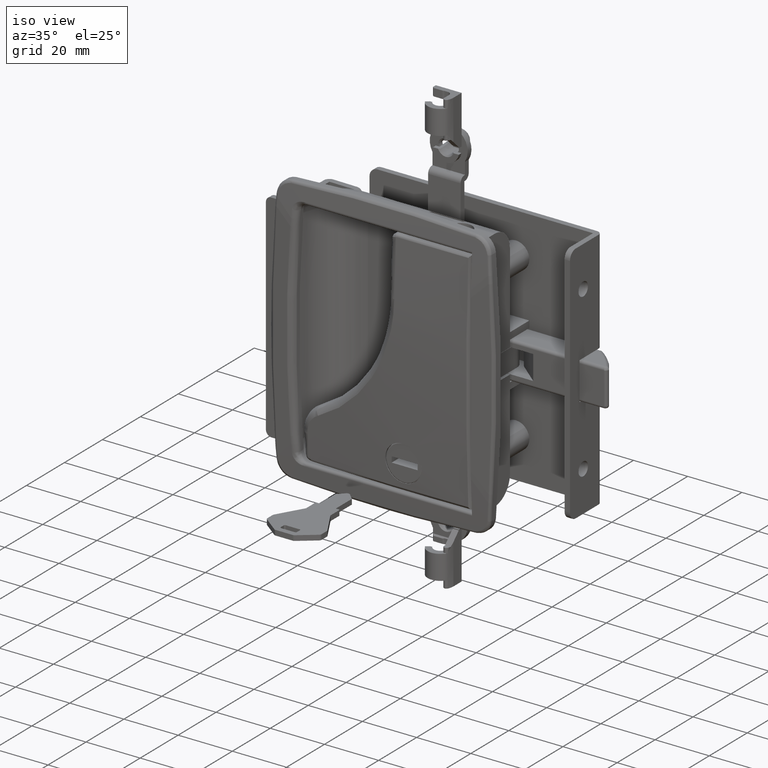
[diagram: clean part render]
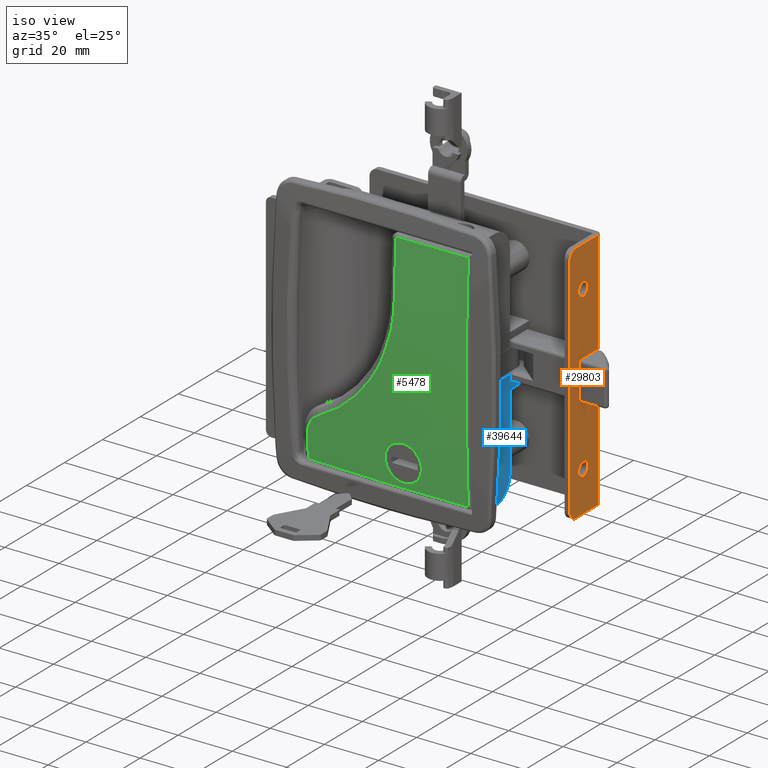
[diagram: same view with three faces highlighted in distinct colors, each labeled with its STEP entity id]
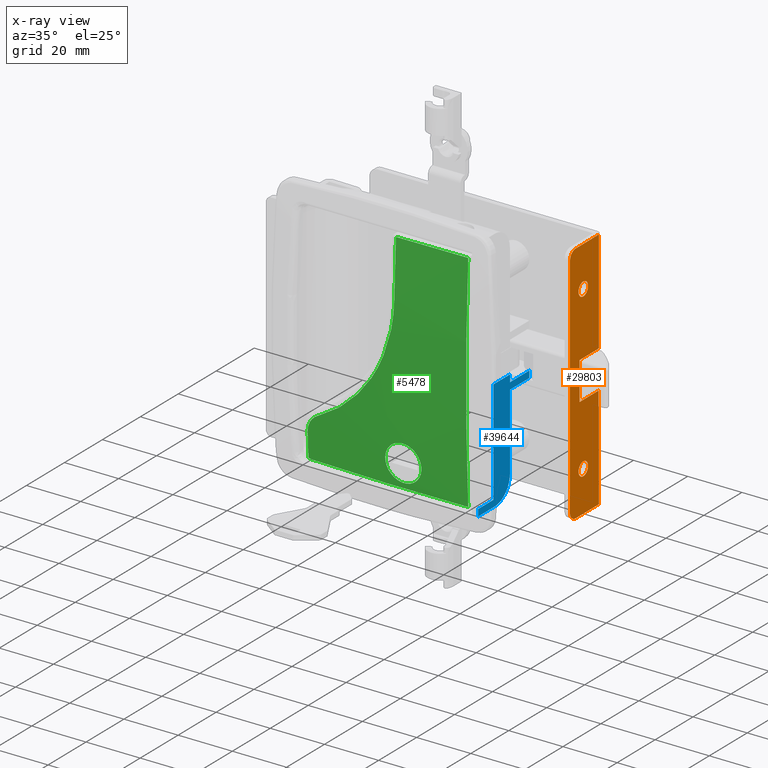
[diagram: x-ray of the same camera — body ghosted, the three highlighted faces saturated]
A machine part, iso view with three faces highlighted in distinct colors.
The next image is the same camera in x-ray (body ghosted, the three faces saturated) — at least one of them is partly hidden behind the body in this view.
Their STEP definitions:

[orange] entity #29803 — the highlighted face is a freeform B-spline surface patch.
#25443=CARTESIAN_POINT('',(58.500000000000007,-11.791626752612901,28.256420619080270));
#25444=VERTEX_POINT('',#25443);
#25450=CARTESIAN_POINT('',(58.500000000000000,-10.0,27.500000000000000));
#25451=VERTEX_POINT('',#25450);
#25452=CARTESIAN_POINT('',(58.500000000000000,-10.0,27.500000000000000));
#25453=CARTESIAN_POINT('',(58.499999999999972,-10.353799747925050,27.499489054551159));
#25454=CARTESIAN_POINT('',(58.500000000000171,-11.019124310109810,27.643920813379530));
#25455=CARTESIAN_POINT('',(58.499999999999829,-11.574133255492701,28.032504268872131));
#25456=CARTESIAN_POINT('',(58.500000000000007,-11.791626752612901,28.256420619080270));
#25457=B_SPLINE_CURVE_WITH_KNOTS('',3,(#25452,#25453,#25454,#25455,#25456),.UNSPECIFIED.,.F.,.U.,(4,1,4),(0.000000091734668,1.061160868878573,1.997522600966416),.UNSPECIFIED.);
#25458=EDGE_CURVE('',#25451,#25444,#25457,.T.);
#25460=CARTESIAN_POINT('',(58.500000000000000,-7.500000000002619,29.999996381261450));
#25461=VERTEX_POINT('',#25460);
#25462=CARTESIAN_POINT('',(58.500000000000000,-7.500000000002619,29.999996381261450));
#25463=CARTESIAN_POINT('',(58.500000000000043,-7.499575384216463,29.652210141308540));
#25464=CARTESIAN_POINT('',(58.500000000000007,-7.612767266153377,29.120799492668279));
#25465=CARTESIAN_POINT('',(58.500000000000000,-7.954896265043962,28.534160824037571));
#25466=CARTESIAN_POINT('',(58.499999999999979,-8.294843221877411,28.149727095857330));
#25467=CARTESIAN_POINT('',(58.499999999999893,-8.786037329991853,27.775676674914109));
#25468=CARTESIAN_POINT('',(58.500000000000362,-9.386353188072505,27.544182437713030));
#25469=CARTESIAN_POINT('',(58.499999999999673,-9.836385908642622,27.500004912769722));
#25470=CARTESIAN_POINT('',(58.500000000000000,-10.0,27.500000000000000));
#25471=B_SPLINE_CURVE_WITH_KNOTS('',3,(#25462,#25463,#25464,#25465,#25466,#25467,#25468,#25469,#25470),.UNSPECIFIED.,.F.,.U.,(4,1,1,1,1,1,4),(0.000000309750733,1.043135406267361,1.595420567432827,2.024861178850746,2.577125802680900,3.436208782156383,3.927087321231317),.UNSPECIFIED.);
#25472=EDGE_CURVE('',#25461,#25451,#25471,.T.);
#25474=CARTESIAN_POINT('',(58.500000000000000,-10.0,32.500000000000000));
#25475=VERTEX_POINT('',#25474);
#25476=CARTESIAN_POINT('',(58.500000000000000,-10.0,32.500000000000000));
#25477=CARTESIAN_POINT('',(58.500000000000057,-9.652226691165442,32.500453213499853));
#25478=CARTESIAN_POINT('',(58.499999999999957,-9.059462576169743,32.374150436875887));
#25479=CARTESIAN_POINT('',(58.500000000000092,-8.290747230759148,31.887479883655580));
#25480=CARTESIAN_POINT('',(58.499999999999730,-7.835858492776588,31.319112983695089));
#25481=CARTESIAN_POINT('',(58.500000000000263,-7.560779371302690,30.654420962905469));
#25482=CARTESIAN_POINT('',(58.499999999999787,-7.499883173891552,30.245446999349671));
#25483=CARTESIAN_POINT('',(58.500000000000000,-7.500000000002619,29.999996381261450));
#25484=B_SPLINE_CURVE_WITH_KNOTS('',3,(#25476,#25477,#25478,#25479,#25480,#25481,#25482,#25483),.UNSPECIFIED.,.F.,.U.,(4,1,1,1,1,4),(0.000000304801900,1.043136485764415,1.779506677488577,2.699873066508526,3.190764189746732,3.927091400494825),.UNSPECIFIED.);
#25485=EDGE_CURVE('',#25475,#25461,#25484,.T.);
#25487=CARTESIAN_POINT('',(58.500000000000007,-11.843194006482120,31.688976127918071));
#25488=VERTEX_POINT('',#25487);
#25489=CARTESIAN_POINT('',(58.500000000000007,-11.843194006482120,31.688976127918071));
#25490=CARTESIAN_POINT('',(58.499999999999993,-11.682808576849821,31.864130389257689));
#25491=CARTESIAN_POINT('',(58.500000000000107,-11.362236226956741,32.126668254783247));
#25492=CARTESIAN_POINT('',(58.499999999999901,-10.733927696937471,32.422791555695177));
#25493=CARTESIAN_POINT('',(58.500000000000249,-10.280699857958380,32.500199862698253));
#25494=CARTESIAN_POINT('',(58.500000000000000,-10.0,32.500000000000000));
#25495=B_SPLINE_CURVE_WITH_KNOTS('',3,(#25489,#25490,#25491,#25492,#25493,#25494),.UNSPECIFIED.,.F.,.U.,(4,1,1,4),(0.000000081706419,0.712471856130516,1.230607914070312,2.072636806791586),.UNSPECIFIED.);
#25496=EDGE_CURVE('',#25488,#25475,#25495,.T.);
#25578=CARTESIAN_POINT('',(58.500000000000007,-12.499999999997380,30.000003618738521));
#25579=VERTEX_POINT('',#25578);
#25580=CARTESIAN_POINT('',(58.500000000000007,-12.499999999997380,30.000003618738521));
#25581=CARTESIAN_POINT('',(58.499999999999957,-12.500096949998129,30.251124670303138));
#25582=CARTESIAN_POINT('',(58.500000000000043,-12.406121717686730,30.869247578963911));
#25583=CARTESIAN_POINT('',(58.500000000000021,-12.091660925802691,31.418688408468579));
#25584=CARTESIAN_POINT('',(58.500000000000007,-11.843194006482120,31.688976127918071));
#25585=B_SPLINE_CURVE_WITH_KNOTS('',3,(#25580,#25581,#25582,#25583,#25584),.UNSPECIFIED.,.F.,.U.,(4,1,4),(0.000000063451577,0.753383243055221,1.854450553923379),.UNSPECIFIED.);
#25586=EDGE_CURVE('',#25579,#25488,#25585,.T.);
#25588=CARTESIAN_POINT('',(58.500000000000007,-11.791626752612901,28.256420619080270));
#25589=CARTESIAN_POINT('',(58.499999999999808,-11.959909328116829,28.429215371720449));
#25590=CARTESIAN_POINT('',(58.500000000000227,-12.233921232104841,28.807543885523849));
#25591=CARTESIAN_POINT('',(58.499999999999979,-12.456229201513720,29.417123661638179));
#25592=CARTESIAN_POINT('',(58.500000000000213,-12.500017610280789,29.819111184092769));
#25593=CARTESIAN_POINT('',(58.500000000000007,-12.499999999997380,30.000003618738521));
#25594=B_SPLINE_CURVE_WITH_KNOTS('',3,(#25588,#25589,#25590,#25591,#25592,#25593),.UNSPECIFIED.,.F.,.U.,(4,1,1,4),(0.000000077307466,0.723589141517209,1.386875963193835,1.929569756129598),.UNSPECIFIED.);
#25595=EDGE_CURVE('',#25444,#25579,#25594,.T.);
#25640=CARTESIAN_POINT('',(58.499999999999993,-11.791626752612901,-31.743279380919720));
#25641=VERTEX_POINT('',#25640);
#25647=CARTESIAN_POINT('',(58.500000000000000,-10.0,-32.499699999999997));
#25648=VERTEX_POINT('',#25647);
#25649=CARTESIAN_POINT('',(58.500000000000000,-10.0,-32.499699999999997));
#25650=CARTESIAN_POINT('',(58.500000000000021,-10.312156115236631,-32.499999183600437));
#25651=CARTESIAN_POINT('',(58.500000000000050,-10.977717358826670,-32.373261764730252));
#25652=CARTESIAN_POINT('',(58.499999999999893,-11.545241495955350,-31.997186885118062));
#25653=CARTESIAN_POINT('',(58.499999999999993,-11.791626752612901,-31.743279380919720));
#25654=B_SPLINE_CURVE_WITH_KNOTS('',3,(#25649,#25650,#25651,#25652,#25653),.UNSPECIFIED.,.F.,.U.,(4,1,4),(0.000000091735229,0.936361823883568,1.997522600966404),.UNSPECIFIED.);
#25655=EDGE_CURVE('',#25648,#25641,#25654,.T.);
#25657=CARTESIAN_POINT('',(58.500000000000000,-7.500000000002619,-29.999703618738540));
#25658=VERTEX_POINT('',#25657);
#25659=CARTESIAN_POINT('',(58.500000000000000,-7.500000000002619,-29.999703618738540));
#25660=CARTESIAN_POINT('',(58.499999999999957,-7.499521543717540,-30.347509292751809));
#25661=CARTESIAN_POINT('',(58.500000000000092,-7.604111781611162,-30.837981722868719));
#25662=CARTESIAN_POINT('',(58.499999999999957,-7.930865775053447,-31.431445955129369));
#25663=CARTESIAN_POINT('',(58.500000000000099,-8.235569194607013,-31.793594384145401));
#25664=CARTESIAN_POINT('',(58.499999999999957,-8.652281339545628,-32.127126037488530));
#25665=CARTESIAN_POINT('',(58.500000000000163,-9.222892607958727,-32.414414198537237));
#25666=CARTESIAN_POINT('',(58.499999999999801,-9.713634983469943,-32.499895450498961));
#25667=CARTESIAN_POINT('',(58.500000000000000,-10.0,-32.499699999999997));
#25668=B_SPLINE_CURVE_WITH_KNOTS('',3,(#25659,#25660,#25661,#25662,#25663,#25664,#25665,#25666,#25667),.UNSPECIFIED.,.F.,.U.,(4,1,1,1,1,1,4),(0.000000309755065,1.043135406270683,1.472665276931566,2.024861178853010,2.454422349206760,3.068045654715613,3.927087321231261),.UNSPECIFIED.);
#25669=EDGE_CURVE('',#25658,#25648,#25668,.T.);
#25671=CARTESIAN_POINT('',(58.500000000000000,-10.0,-27.499700000000001));
#25672=VERTEX_POINT('',#25671);
#25673=CARTESIAN_POINT('',(58.500000000000000,-10.0,-27.499700000000001));
#25674=CARTESIAN_POINT('',(58.499999999999957,-9.754552369406728,-27.499599515813610));
#25675=CARTESIAN_POINT('',(58.500000000000099,-9.263735133037471,-27.572553032493630));
#25676=CARTESIAN_POINT('',(58.499999999999822,-8.609544075027740,-27.881890618590131));
#25677=CARTESIAN_POINT('',(58.500000000000412,-8.037385815074970,-28.387772710695401));
#25678=CARTESIAN_POINT('',(58.499999999999417,-7.610491252235001,-29.099864904968580));
#25679=CARTESIAN_POINT('',(58.500000000000377,-7.499769185098969,-29.692882721033151));
#25680=CARTESIAN_POINT('',(58.500000000000000,-7.500000000002619,-29.999703618738540));
#25681=B_SPLINE_CURVE_WITH_KNOTS('',3,(#25673,#25674,#25675,#25676,#25677,#25678,#25679,#25680),.UNSPECIFIED.,.F.,.U.,(4,1,1,1,1,4),(0.000000304801356,0.736327517250007,1.472666806307761,2.147585032619301,3.006682035478356,3.927091400494818),.UNSPECIFIED.);
#25682=EDGE_CURVE('',#25672,#25658,#25681,.T.);
#25684=CARTESIAN_POINT('',(58.499999999999993,-11.843194006482120,-28.310723872081940));
#25685=VERTEX_POINT('',#25684);
#25686=CARTESIAN_POINT('',(58.499999999999993,-11.843194006482120,-28.310723872081940));
#25687=CARTESIAN_POINT('',(58.500000000000007,-11.624616143066550,-28.071705872746708));
#25688=CARTESIAN_POINT('',(58.499999999999943,-11.057408060020521,-27.654784697483912));
#25689=CARTESIAN_POINT('',(58.500000000000043,-10.367102558836381,-27.499171984479439));
#25690=CARTESIAN_POINT('',(58.500000000000000,-10.0,-27.499700000000001));
#25691=B_SPLINE_CURVE_WITH_KNOTS('',3,(#25686,#25687,#25688,#25689,#25690),.UNSPECIFIED.,.F.,.U.,(4,1,4),(0.000000081706484,0.971566302684553,2.072636806791586),.UNSPECIFIED.);
#25692=EDGE_CURVE('',#25685,#25672,#25691,.T.);
#25773=CARTESIAN_POINT('',(58.499999999999993,-12.499999999997380,-29.999696381261479));
#25774=VERTEX_POINT('',#25773);
#25775=CARTESIAN_POINT('',(58.499999999999993,-12.499999999997380,-29.999696381261479));
#25776=CARTESIAN_POINT('',(58.499999999999957,-12.500094016407729,-29.748574917548741));
#25777=CARTESIAN_POINT('',(58.500000000000107,-12.406119502333940,-29.130457194658000));
#25778=CARTESIAN_POINT('',(58.500000000000000,-12.091672097273630,-28.581001544780470));
#25779=CARTESIAN_POINT('',(58.499999999999993,-11.843194006482120,-28.310723872081940));
#25780=B_SPLINE_CURVE_WITH_KNOTS('',3,(#25775,#25776,#25777,#25778,#25779),.UNSPECIFIED.,.F.,.U.,(4,1,4),(0.000000063451131,0.753383243055227,1.854450553923372),.UNSPECIFIED.);
#25781=EDGE_CURVE('',#25774,#25685,#25780,.T.);
#25783=CARTESIAN_POINT('',(58.499999999999993,-11.791626752612901,-31.743279380919720));
#25784=CARTESIAN_POINT('',(58.499999999999957,-11.973980961036689,-31.556113166533631));
#25785=CARTESIAN_POINT('',(58.500000000000021,-12.232042862923800,-31.190375417301990));
#25786=CARTESIAN_POINT('',(58.500000000000028,-12.453697129595930,-30.582552030608920));
#25787=CARTESIAN_POINT('',(58.499999999999929,-12.500044180369240,-30.200694374165099));
#25788=CARTESIAN_POINT('',(58.499999999999993,-12.499999999997380,-29.999696381261479));
#25789=B_SPLINE_CURVE_WITH_KNOTS('',3,(#25783,#25784,#25785,#25786,#25787,#25788),.UNSPECIFIED.,.F.,.U.,(4,1,1,4),(0.000000077307604,0.783902054725631,1.326571351818781,1.929569756129596),.UNSPECIFIED.);
#25790=EDGE_CURVE('',#25641,#25774,#25789,.T.);
#26550=CARTESIAN_POINT('',(58.500000000000000,-2.0,-6.999700000000000));
#26551=VERTEX_POINT('',#26550);
#26571=CARTESIAN_POINT('',(58.500000000000000,-12.0,-6.999699999999921));
#26572=VERTEX_POINT('',#26571);
#26578=CARTESIAN_POINT('',(58.500000000000000,-2.0,-6.999700000000000));
#26579=CARTESIAN_POINT('',(58.500000000000000,-12.0,-6.999699999999921));
#26580=QUASI_UNIFORM_CURVE('',1,(#26578,#26579),.UNSPECIFIED.,.F.,.U.);
#26581=EDGE_CURVE('',#26551,#26572,#26580,.T.);
#26591=CARTESIAN_POINT('',(58.500000000000000,-2.0,7.0));
#26592=VERTEX_POINT('',#26591);
#26605=CARTESIAN_POINT('',(58.500000000000000,-12.0,7.0));
#26606=VERTEX_POINT('',#26605);
#26607=CARTESIAN_POINT('',(58.500000000000000,-12.0,7.0));
#26608=CARTESIAN_POINT('',(58.500000000000000,-2.0,7.0));
#26609=QUASI_UNIFORM_CURVE('',1,(#26607,#26608),.UNSPECIFIED.,.F.,.U.);
#26610=EDGE_CURVE('',#26606,#26592,#26609,.T.);
#26633=CARTESIAN_POINT('',(58.500000000000000,-12.0,-6.999699999999921));
#26634=CARTESIAN_POINT('',(58.500000000000000,-12.0,7.0));
#26635=QUASI_UNIFORM_CURVE('',1,(#26633,#26634),.UNSPECIFIED.,.F.,.U.);
#26636=EDGE_CURVE('',#26572,#26606,#26635,.T.);
#29354=CARTESIAN_POINT('',(58.500000000000000,-17.0,42.0));
#29355=VERTEX_POINT('',#29354);
#29356=CARTESIAN_POINT('',(58.500000000000000,-14.0,45.0));
#29357=VERTEX_POINT('',#29356);
#29358=CARTESIAN_POINT('',(58.500000000000000,-17.0,42.0));
#29359=CARTESIAN_POINT('',(58.500000000000071,-17.000565701282220,42.417355488762347));
#29360=CARTESIAN_POINT('',(58.499999999999837,-16.859389001251358,43.079541580925813));
#29361=CARTESIAN_POINT('',(58.500000000000171,-16.388896499205700,43.864332191205733));
#29362=CARTESIAN_POINT('',(58.499999999999922,-15.899289584924579,44.353924629450027));
#29363=CARTESIAN_POINT('',(58.500000000000199,-15.315863390566390,44.723359181278887));
#29364=CARTESIAN_POINT('',(58.499999999999403,-14.687218016204710,44.948307022895882));
#29365=CARTESIAN_POINT('',(58.500000000000853,-14.220882997427781,45.000028651291153));
#29366=CARTESIAN_POINT('',(58.500000000000000,-14.0,45.0));
#29367=B_SPLINE_CURVE_WITH_KNOTS('',3,(#29358,#29359,#29360,#29361,#29362,#29363,#29364,#29365,#29366),.UNSPECIFIED.,.F.,.U.,(4,1,1,1,1,1,4),(0.000000209659517,1.251763159019602,1.988129181222416,2.724384047940158,3.313481589171491,4.049836747317021,4.712507233014499),.UNSPECIFIED.);
#29368=EDGE_CURVE('',#29355,#29357,#29367,.T.);
#29413=CARTESIAN_POINT('',(58.500000000000000,-14.0,-44.999699999999997));
#29414=VERTEX_POINT('',#29413);
#29415=CARTESIAN_POINT('',(58.500000000000000,-17.0,-41.999699999999997));
#29416=VERTEX_POINT('',#29415);
#29417=CARTESIAN_POINT('',(58.500000000000000,-14.0,-44.999699999999997));
#29418=CARTESIAN_POINT('',(58.499999999999943,-14.417349394919960,-45.000258933535029));
#29419=CARTESIAN_POINT('',(58.500000000000021,-15.079557465850280,-44.859107917391157));
#29420=CARTESIAN_POINT('',(58.500000000000092,-15.821883957936590,-44.414002398284190));
#29421=CARTESIAN_POINT('',(58.500000000000000,-16.286261502219588,-43.971859690345937));
#29422=CARTESIAN_POINT('',(58.500000000000071,-16.627074633538729,-43.487945358455207));
#29423=CARTESIAN_POINT('',(58.499999999999453,-16.916977848436151,-42.834096370662571));
#29424=CARTESIAN_POINT('',(58.500000000000782,-17.000160312731570,-42.318790054819061));
#29425=CARTESIAN_POINT('',(58.500000000000000,-17.0,-41.999699999999997));
#29426=B_SPLINE_CURVE_WITH_KNOTS('',3,(#29417,#29418,#29419,#29420,#29421,#29422,#29423,#29424,#29425),.UNSPECIFIED.,.F.,.U.,(4,1,1,1,1,1,4),(0.000000209650130,1.251763159013205,1.988129181217878,2.577103578585889,3.166198560979680,3.755279504342205,4.712507233014530),.UNSPECIFIED.);
#29427=EDGE_CURVE('',#29414,#29416,#29426,.T.);
#29592=CARTESIAN_POINT('',(58.500000000000000,-2.0,45.0));
#29593=VERTEX_POINT('',#29592);
#29594=CARTESIAN_POINT('',(58.500000000000000,-2.0,45.0));
#29595=CARTESIAN_POINT('',(58.500000000000000,-14.0,45.0));
#29596=QUASI_UNIFORM_CURVE('',1,(#29594,#29595),.UNSPECIFIED.,.F.,.U.);
#29597=EDGE_CURVE('',#29593,#29357,#29596,.T.);
#29633=CARTESIAN_POINT('',(58.500000000000000,-2.0,-44.999699999999997));
#29634=VERTEX_POINT('',#29633);
#29646=CARTESIAN_POINT('',(58.500000000000000,-2.0,-44.999699999999997));
#29647=CARTESIAN_POINT('',(58.500000000000000,-14.0,-44.999699999999997));
#29648=QUASI_UNIFORM_CURVE('',1,(#29646,#29647),.UNSPECIFIED.,.F.,.U.);
#29649=EDGE_CURVE('',#29634,#29414,#29648,.T.);
#29751=CARTESIAN_POINT('',(58.500000000000000,-17.0,-41.999699999999997));
#29752=CARTESIAN_POINT('',(58.500000000000000,-17.0,42.0));
#29753=QUASI_UNIFORM_CURVE('',1,(#29751,#29752),.UNSPECIFIED.,.F.,.U.);
#29754=EDGE_CURVE('',#29416,#29355,#29753,.T.);
#29762=CARTESIAN_POINT('',(58.500000000000000,-1.250750029072910,-49.495183995710327));
#29763=CARTESIAN_POINT('',(58.500000000000000,-1.250750029072910,49.495487214350419));
#29764=CARTESIAN_POINT('',(58.500000000000000,-17.749250373258452,-49.495183995710327));
#29765=CARTESIAN_POINT('',(58.500000000000000,-17.749250373258452,49.495487214350412));
#29766=B_SPLINE_SURFACE_WITH_KNOTS('',1,1,((#29762,#29764),(#29763,#29765)),.UNSPECIFIED.,.F.,.F.,.U.,(2,2),(2,2),(0.0,98.990671210060754),(0.0,16.498500344185530),.UNSPECIFIED.);
#29767=ORIENTED_EDGE('',*,*,#26610,.T.);
#29768=CARTESIAN_POINT('',(58.500000000000000,-2.0,7.0));
#29769=CARTESIAN_POINT('',(58.500000000000000,-2.0,45.0));
#29770=QUASI_UNIFORM_CURVE('',1,(#29768,#29769),.UNSPECIFIED.,.F.,.U.);
#29771=EDGE_CURVE('',#26592,#29593,#29770,.T.);
#29772=ORIENTED_EDGE('',*,*,#29771,.T.);
#29773=ORIENTED_EDGE('',*,*,#29597,.T.);
#29774=ORIENTED_EDGE('',*,*,#29368,.F.);
#29775=ORIENTED_EDGE('',*,*,#29754,.F.);
#29776=ORIENTED_EDGE('',*,*,#29427,.F.);
#29777=ORIENTED_EDGE('',*,*,#29649,.F.);
#29778=CARTESIAN_POINT('',(58.500000000000000,-2.0,-44.999699999999997));
#29779=CARTESIAN_POINT('',(58.500000000000000,-2.0,-6.999700000000000));
#29780=QUASI_UNIFORM_CURVE('',1,(#29778,#29779),.UNSPECIFIED.,.F.,.U.);
#29781=EDGE_CURVE('',#29634,#26551,#29780,.T.);
#29782=ORIENTED_EDGE('',*,*,#29781,.T.);
#29783=ORIENTED_EDGE('',*,*,#26581,.T.);
#29784=ORIENTED_EDGE('',*,*,#26636,.T.);
#29785=EDGE_LOOP('',(#29767,#29772,#29773,#29774,#29775,#29776,#29777,#29782,#29783,#29784));
#29786=FACE_OUTER_BOUND('',#29785,.T.);
#29787=ORIENTED_EDGE('',*,*,#25485,.T.);
#29788=ORIENTED_EDGE('',*,*,#25472,.T.);
#29789=ORIENTED_EDGE('',*,*,#25458,.T.);
#29790=ORIENTED_EDGE('',*,*,#25595,.T.);
#29791=ORIENTED_EDGE('',*,*,#25586,.T.);
#29792=ORIENTED_EDGE('',*,*,#25496,.T.);
#29793=EDGE_LOOP('',(#29787,#29788,#29789,#29790,#29791,#29792));
#29794=FACE_BOUND('',#29793,.T.);
#29795=ORIENTED_EDGE('',*,*,#25682,.T.);
#29796=ORIENTED_EDGE('',*,*,#25669,.T.);
#29797=ORIENTED_EDGE('',*,*,#25655,.T.);
#29798=ORIENTED_EDGE('',*,*,#25790,.T.);
#29799=ORIENTED_EDGE('',*,*,#25781,.T.);
#29800=ORIENTED_EDGE('',*,*,#25692,.T.);
#29801=EDGE_LOOP('',(#29795,#29796,#29797,#29798,#29799,#29800));
#29802=FACE_BOUND('',#29801,.T.);
#29803=ADVANCED_FACE('',(#29786,#29794,#29802),#29766,.T.);

[blue] entity #39644 — the highlighted face is a freeform B-spline surface patch.
#32096=CARTESIAN_POINT('',(-33.0,-12.199999999999999,30.0));
#32097=VERTEX_POINT('',#32096);
#33320=CARTESIAN_POINT('',(-33.0,-12.199999999999999,9.600000000000000));
#33321=VERTEX_POINT('',#33320);
#33327=CARTESIAN_POINT('',(-33.0,-12.199999999999999,9.600000000000000));
#33328=CARTESIAN_POINT('',(-33.0,-12.199999999999999,30.0));
#33329=QUASI_UNIFORM_CURVE('',1,(#33327,#33328),.UNSPECIFIED.,.F.,.U.);
#33330=EDGE_CURVE('',#33321,#32097,#33329,.T.);
#33338=CARTESIAN_POINT('',(-33.0,-12.199999999999999,37.500000000000000));
#33339=VERTEX_POINT('',#33338);
#33340=CARTESIAN_POINT('',(-33.0,-12.199999999999999,30.0));
#33341=CARTESIAN_POINT('',(-33.0,-12.199999999999999,37.500000000000000));
#33342=QUASI_UNIFORM_CURVE('',1,(#33340,#33341),.UNSPECIFIED.,.F.,.U.);
#33343=EDGE_CURVE('',#32097,#33339,#33342,.T.);
#36451=CARTESIAN_POINT('',(-33.0,-20.199999999999999,45.500000000000000));
#36452=VERTEX_POINT('',#36451);
#36453=CARTESIAN_POINT('',(-33.0,-20.199999999999999,45.500000000000000));
#36454=CARTESIAN_POINT('',(-33.000000000000121,-19.545490042327039,45.500180883045743));
#36455=CARTESIAN_POINT('',(-32.999999999999808,-18.334765700092209,45.350522751722721));
#36456=CARTESIAN_POINT('',(-33.000000000000142,-16.541809702554310,44.696750902445856));
#36457=CARTESIAN_POINT('',(-32.999999999999851,-15.109349770449620,43.752228847021563));
#36458=CARTESIAN_POINT('',(-33.000000000000192,-13.801771694152171,42.412174193378881));
#36459=CARTESIAN_POINT('',(-32.999999999999453,-12.900928298772840,40.950277206761903));
#36460=CARTESIAN_POINT('',(-33.000000000001023,-12.323452408235250,39.201640538811787));
#36461=CARTESIAN_POINT('',(-32.999999999998941,-12.199905213819720,38.089050790285441));
#36462=CARTESIAN_POINT('',(-33.0,-12.199999999999999,37.500000000000000));
#36463=B_SPLINE_CURVE_WITH_KNOTS('',3,(#36453,#36454,#36455,#36456,#36457,#36458,#36459,#36460,#36461,#36462),.UNSPECIFIED.,.F.,.U.,(4,1,1,1,1,1,1,4),(0.000000175888310,1.963485493921413,3.632498033050704,5.694196153190730,7.068579191480486,9.228484285812163,10.799310564038910,12.566449463011219),.UNSPECIFIED.);
#36464=EDGE_CURVE('',#36452,#33339,#36463,.T.);
#37969=CARTESIAN_POINT('',(-33.0,-21.0,4.500000000000000));
#37970=VERTEX_POINT('',#37969);
#37976=CARTESIAN_POINT('',(-33.0,-12.199999999999999,4.500000000000000));
#37977=VERTEX_POINT('',#37976);
#37978=CARTESIAN_POINT('',(-33.0,-21.0,4.500000000000000));
#37979=CARTESIAN_POINT('',(-33.0,-12.199999999999999,4.500000000000000));
#37980=QUASI_UNIFORM_CURVE('',1,(#37978,#37979),.UNSPECIFIED.,.F.,.U.);
#37981=EDGE_CURVE('',#37970,#37977,#37980,.T.);
#38096=CARTESIAN_POINT('',(-33.0,-2.0,7.100000000000001));
#38097=VERTEX_POINT('',#38096);
#38105=CARTESIAN_POINT('',(-33.0,-2.0,9.600000000000000));
#38106=VERTEX_POINT('',#38105);
#38107=CARTESIAN_POINT('',(-33.0,-2.0,9.600000000000000));
#38108=CARTESIAN_POINT('',(-33.0,-2.0,7.100000000000001));
#38109=QUASI_UNIFORM_CURVE('',1,(#38107,#38108),.UNSPECIFIED.,.F.,.U.);
#38110=EDGE_CURVE('',#38106,#38097,#38109,.T.);
#38162=CARTESIAN_POINT('',(-33.0,-12.199999999999999,7.100000000000111));
#38163=VERTEX_POINT('',#38162);
#38169=CARTESIAN_POINT('',(-33.0,-12.199999999999999,7.100000000000111));
#38170=CARTESIAN_POINT('',(-33.0,-2.0,7.100000000000001));
#38171=QUASI_UNIFORM_CURVE('',1,(#38169,#38170),.UNSPECIFIED.,.F.,.U.);
#38172=EDGE_CURVE('',#38163,#38097,#38171,.T.);
#38397=CARTESIAN_POINT('',(-33.0,-12.199999999999999,9.600000000000000));
#38398=CARTESIAN_POINT('',(-33.0,-2.0,9.600000000000000));
#38399=QUASI_UNIFORM_CURVE('',1,(#38397,#38398),.UNSPECIFIED.,.F.,.U.);
#38400=EDGE_CURVE('',#33321,#38106,#38399,.T.);
#38795=CARTESIAN_POINT('',(-33.0,-29.0,43.0));
#38796=VERTEX_POINT('',#38795);
#38802=CARTESIAN_POINT('',(-33.0,-21.0,43.0));
#38803=VERTEX_POINT('',#38802);
#38804=CARTESIAN_POINT('',(-33.0,-21.0,43.0));
#38805=CARTESIAN_POINT('',(-33.0,-29.0,43.0));
#38806=QUASI_UNIFORM_CURVE('',1,(#38804,#38805),.UNSPECIFIED.,.F.,.U.);
#38807=EDGE_CURVE('',#38803,#38796,#38806,.T.);
#39183=CARTESIAN_POINT('',(-33.0,-29.0,45.500000000000000));
#39184=VERTEX_POINT('',#39183);
#39190=CARTESIAN_POINT('',(-33.0,-29.0,43.0));
#39191=CARTESIAN_POINT('',(-33.0,-29.0,45.500000000000000));
#39192=QUASI_UNIFORM_CURVE('',1,(#39190,#39191),.UNSPECIFIED.,.F.,.U.);
#39193=EDGE_CURVE('',#38796,#39184,#39192,.T.);
#39252=CARTESIAN_POINT('',(-33.0,-29.0,45.500000000000000));
#39253=CARTESIAN_POINT('',(-33.0,-20.199999999999999,45.500000000000000));
#39254=QUASI_UNIFORM_CURVE('',1,(#39252,#39253),.UNSPECIFIED.,.F.,.U.);
#39255=EDGE_CURVE('',#39184,#36452,#39254,.T.);
#39568=CARTESIAN_POINT('',(-33.0,-12.199999999999999,4.500000000000000));
#39569=CARTESIAN_POINT('',(-33.0,-12.199999999999999,7.100000000000111));
#39570=QUASI_UNIFORM_CURVE('',1,(#39568,#39569),.UNSPECIFIED.,.F.,.U.);
#39571=EDGE_CURVE('',#37977,#38163,#39570,.T.);
#39614=CARTESIAN_POINT('',(-33.0,-21.0,4.500000000000000));
#39615=CARTESIAN_POINT('',(-33.0,-21.0,43.0));
#39616=QUASI_UNIFORM_CURVE('',1,(#39614,#39615),.UNSPECIFIED.,.F.,.U.);
#39617=EDGE_CURVE('',#37970,#38803,#39616,.T.);
#39625=CARTESIAN_POINT('',(-33.0,-30.348649947668761,47.547949920534052));
#39626=CARTESIAN_POINT('',(-33.0,-30.348649947668761,2.452048979760262));
#39627=CARTESIAN_POINT('',(-33.0,-0.651349328134806,47.547949920534052));
#39628=CARTESIAN_POINT('',(-33.0,-0.651349328134806,2.452048979760262));
#39629=B_SPLINE_SURFACE_WITH_KNOTS('',1,1,((#39625,#39627),(#39626,#39628)),.UNSPECIFIED.,.F.,.F.,.U.,(2,2),(2,2),(0.0,45.095900940773788),(0.0,29.697300619533959),.UNSPECIFIED.);
#39630=ORIENTED_EDGE('',*,*,#39255,.T.);
#39631=ORIENTED_EDGE('',*,*,#36464,.T.);
#39632=ORIENTED_EDGE('',*,*,#33343,.F.);
#39633=ORIENTED_EDGE('',*,*,#33330,.F.);
#39634=ORIENTED_EDGE('',*,*,#38400,.T.);
#39635=ORIENTED_EDGE('',*,*,#38110,.T.);
#39636=ORIENTED_EDGE('',*,*,#38172,.F.);
#39637=ORIENTED_EDGE('',*,*,#39571,.F.);
#39638=ORIENTED_EDGE('',*,*,#37981,.F.);
#39639=ORIENTED_EDGE('',*,*,#39617,.T.);
#39640=ORIENTED_EDGE('',*,*,#38807,.T.);
#39641=ORIENTED_EDGE('',*,*,#39193,.T.);
#39642=EDGE_LOOP('',(#39630,#39631,#39632,#39633,#39634,#39635,#39636,#39637,#39638,#39639,#39640,#39641));
#39643=FACE_OUTER_BOUND('',#39642,.T.);
#39644=ADVANCED_FACE('',(#39643),#39629,.F.);

[green] entity #5478 — the highlighted face is a freeform B-spline surface patch.
#1901=CARTESIAN_POINT('',(10.888475017855599,-33.011278081176428,-26.955854867524032));
#1902=VERTEX_POINT('',#1901);
#1908=CARTESIAN_POINT('',(3.267356618105063,-32.913956256110779,-28.256120032657972));
#1909=VERTEX_POINT('',#1908);
#1910=CARTESIAN_POINT('',(10.888475017855599,-33.011278081176428,-26.955854867524032));
#1911=CARTESIAN_POINT('',(10.501141371707311,-33.017391527459687,-26.771006412484869));
#1912=CARTESIAN_POINT('',(9.650271193490442,-33.026578305317742,-26.461208797198420));
#1913=CARTESIAN_POINT('',(8.412186560473156,-33.028197215455243,-26.276991205839970));
#1914=CARTESIAN_POINT('',(7.164504471136723,-33.019739452907082,-26.320259172843080));
#1915=CARTESIAN_POINT('',(5.898685222156511,-33.001359847904567,-26.586482478764051));
#1916=CARTESIAN_POINT('',(4.517280558673454,-32.967022122101142,-27.201009299738750));
#1917=CARTESIAN_POINT('',(3.662332728995930,-32.933381481462959,-27.862433937832471));
#1918=CARTESIAN_POINT('',(3.267356618105063,-32.913956256110779,-28.256120032657972));
#1919=B_SPLINE_CURVE_WITH_KNOTS('',3,(#1910,#1911,#1912,#1913,#1914,#1915,#1916,#1917,#1918),.UNSPECIFIED.,.F.,.U.,(4,1,1,1,1,1,4),(-6.628294E-009,1.287690602994185,2.704200554082154,3.734361653942718,5.022045938846938,6.567322412004256,8.241333879009877),.UNSPECIFIED.);
#1920=EDGE_CURVE('',#1902,#1909,#1919,.T.);
#1922=CARTESIAN_POINT('',(3.253998239921028,-32.496264351499939,-37.729917552943341));
#1923=VERTEX_POINT('',#1922);
#1924=CARTESIAN_POINT('',(3.267356618105063,-32.913956256110779,-28.256120032657972));
#1925=CARTESIAN_POINT('',(2.936934176579900,-32.897729236468479,-28.584821585362590));
#1926=CARTESIAN_POINT('',(2.414872551165683,-32.866716778292847,-29.226075284499160));
#1927=CARTESIAN_POINT('',(1.809377858537343,-32.814579099040927,-30.336605875120249));
#1928=CARTESIAN_POINT('',(1.383563795343864,-32.755893514083191,-31.617107457313331));
#1929=CARTESIAN_POINT('',(1.226716773082001,-32.686031202000393,-33.183234816870502));
#1930=CARTESIAN_POINT('',(1.457302151312319,-32.621014527401393,-34.685648362513042));
#1931=CARTESIAN_POINT('',(2.069789987562701,-32.554049793551009,-36.277804346742677));
#1932=CARTESIAN_POINT('',(2.730381684243074,-32.516592055695227,-37.206328068390029));
#1933=CARTESIAN_POINT('',(3.253998239921028,-32.496264351499939,-37.729917552943341));
#1934=B_SPLINE_CURVE_WITH_KNOTS('',3,(#1924,#1925,#1926,#1927,#1928,#1929,#1930,#1931,#1932,#1933),.UNSPECIFIED.,.F.,.U.,(4,1,1,1,1,1,1,4),(0.000000191958783,1.399061474037604,2.468983084935379,3.785786630042983,5.431723849936654,7.160053162674595,8.312263072173153,10.534339394865450),.UNSPECIFIED.);
#1935=EDGE_CURVE('',#1909,#1923,#1934,.T.);
#1937=CARTESIAN_POINT('',(12.732331631413469,-32.545584225266687,-37.741595366524287));
#1938=VERTEX_POINT('',#1937);
#1939=CARTESIAN_POINT('',(3.253998239921028,-32.496264351499939,-37.729917552943341));
#1940=CARTESIAN_POINT('',(3.602542269903425,-32.482707653150783,-38.079024614150882));
#1941=CARTESIAN_POINT('',(4.334270006297551,-32.460713672938162,-38.665235723886532));
#1942=CARTESIAN_POINT('',(5.465609546545658,-32.441509170537607,-39.235829916995513));
#1943=CARTESIAN_POINT('',(6.727944297865676,-32.431207291946748,-39.620091157590601));
#1944=CARTESIAN_POINT('',(8.184733366654404,-32.432461751928173,-39.765388538625167));
#1945=CARTESIAN_POINT('',(9.687536952243278,-32.450517459025669,-39.535035887892832));
#1946=CARTESIAN_POINT('',(11.279991403481061,-32.485843289849072,-38.923601302259030));
#1947=CARTESIAN_POINT('',(12.208630415290850,-32.519792871422773,-38.264212131335150));
#1948=CARTESIAN_POINT('',(12.732331631413469,-32.545584225266687,-37.741595366524287));
#1949=B_SPLINE_CURVE_WITH_KNOTS('',3,(#1939,#1940,#1941,#1942,#1943,#1944,#1945,#1946,#1947,#1948),.UNSPECIFIED.,.F.,.U.,(4,1,1,1,1,1,1,4),(0.000000196429708,1.480486023092086,2.796481221298745,3.783477966483418,5.428411540959210,7.155686862529207,8.307194118146979,10.527915404538870),.UNSPECIFIED.);
#1950=EDGE_CURVE('',#1923,#1938,#1949,.T.);
#1952=CARTESIAN_POINT('',(13.869431631284471,-32.618125067131892,-36.231062156962523));
#1953=VERTEX_POINT('',#1952);
#1954=CARTESIAN_POINT('',(12.732331631413469,-32.545584225266687,-37.741595366524287));
#1955=CARTESIAN_POINT('',(13.180359095825890,-32.567608849081608,-37.295212193562520));
#1956=CARTESIAN_POINT('',(13.564431756413670,-32.592114436747643,-36.784920046238987));
#1957=CARTESIAN_POINT('',(13.869431631284471,-32.618125067131892,-36.231062156962523));
#1958=B_SPLINE_CURVE_WITH_KNOTS('',3,(#1954,#1955,#1956,#1957),.UNSPECIFIED.,.F.,.U.,(4,4),(-1.248144E-009,1.898445889282505),.UNSPECIFIED.);
#1959=EDGE_CURVE('',#1938,#1953,#1958,.T.);
#1998=CARTESIAN_POINT('',(12.744001186119000,-32.963165538332447,-28.269481848712001));
#1999=VERTEX_POINT('',#1998);
#2000=CARTESIAN_POINT('',(13.869431631284471,-32.618125067131892,-36.231062156962523));
#2001=CARTESIAN_POINT('',(14.108215940589680,-32.638450123802407,-35.798430338781351));
#2002=CARTESIAN_POINT('',(14.541448093246769,-32.686729706030214,-34.754803823685137));
#2003=CARTESIAN_POINT('',(14.752773575987851,-32.753166774146081,-33.272819039774937));
#2004=CARTESIAN_POINT('',(14.648067113759900,-32.810042488179548,-31.970079150719979));
#2005=CARTESIAN_POINT('',(14.410867781467051,-32.853240201216991,-30.961844765928891));
#2006=CARTESIAN_POINT('',(13.890010090398951,-32.907660505642653,-29.665215907591381));
#2007=CARTESIAN_POINT('',(13.252444274649960,-32.943415793370001,-28.778107249253530));
#2008=CARTESIAN_POINT('',(12.744001186119000,-32.963165538332447,-28.269481848712001));
#2009=B_SPLINE_CURVE_WITH_KNOTS('',3,(#2000,#2001,#2002,#2003,#2004,#2005,#2006,#2007,#2008),.UNSPECIFIED.,.F.,.U.,(4,1,1,1,1,1,4),(0.000000093711641,1.483761274408709,3.372196806180111,4.451288293819660,5.395499388457562,6.474605891370445,8.632807823927637),.UNSPECIFIED.);
#2010=EDGE_CURVE('',#1953,#1999,#2009,.T.);
#2012=CARTESIAN_POINT('',(12.744001186119000,-32.963165538332447,-28.269481848712001));
#2013=CARTESIAN_POINT('',(12.206332639132050,-32.984091203953007,-27.730341971642240));
#2014=CARTESIAN_POINT('',(11.575867306445410,-33.000444307225962,-27.283875359859540));
#2015=CARTESIAN_POINT('',(10.888475017855599,-33.011278081176428,-26.955854867524032));
#2016=B_SPLINE_CURVE_WITH_KNOTS('',3,(#2012,#2013,#2014,#2015),.UNSPECIFIED.,.F.,.U.,(4,4),(0.000000011087330,2.285022160653084),.UNSPECIFIED.);
#2017=EDGE_CURVE('',#1999,#1902,#2016,.T.);
#3962=CARTESIAN_POINT('',(-28.064796894004299,-31.292009073200749,-41.231640802182703));
#3963=VERTEX_POINT('',#3962);
#3984=CARTESIAN_POINT('',(-26.973415502319249,-31.331713061999899,-41.555151673850851));
#3985=VERTEX_POINT('',#3984);
#3996=CARTESIAN_POINT('',(-26.973415502319249,-31.331713061999899,-41.555151673850851));
#3997=CARTESIAN_POINT('',(-27.141629098009538,-31.322949548876860,-41.555240294678192));
#3998=CARTESIAN_POINT('',(-27.526223926969340,-31.305506552820312,-41.506446480710480));
#3999=CARTESIAN_POINT('',(-27.883286520439349,-31.295208436234979,-41.349752711255277));
#4000=CARTESIAN_POINT('',(-28.064796894004299,-31.292009073200749,-41.231640802182703));
#4001=B_SPLINE_CURVE_WITH_KNOTS('',3,(#3996,#3997,#3998,#3999,#4000),.UNSPECIFIED.,.F.,.U.,(4,1,4),(0.000000036217512,0.505333958731101,1.155048635429539),.UNSPECIFIED.);
#4002=EDGE_CURVE('',#3985,#3963,#4001,.T.);
#4174=CARTESIAN_POINT('',(-28.033314899863299,-31.697657675222800,-33.109043948162252));
#4175=VERTEX_POINT('',#4174);
#4176=CARTESIAN_POINT('',(-28.064796894004299,-31.292009073200749,-41.231640802182703));
#4177=CARTESIAN_POINT('',(-28.040505114784288,-31.345653074411960,-40.264485364555661));
#4178=CARTESIAN_POINT('',(-28.006435465684412,-31.420889732914201,-38.908032793223931));
#4179=CARTESIAN_POINT('',(-27.954741137282870,-31.517208182937910,-37.051383030878007));
#4180=CARTESIAN_POINT('',(-27.946436123117721,-31.582950080719989,-35.711223728047827));
#4181=CARTESIAN_POINT('',(-27.964751133006899,-31.645351871233981,-34.359539948370703));
#4182=CARTESIAN_POINT('',(-28.011365250450691,-31.680912765886191,-33.509371264685043));
#4183=CARTESIAN_POINT('',(-28.033314899863299,-31.697657675222800,-33.109043948162252));
#4184=B_SPLINE_CURVE_WITH_KNOTS('',3,(#4176,#4177,#4178,#4179,#4180,#4181,#4182,#4183),.UNSPECIFIED.,.F.,.U.,(4,1,1,1,1,4),(0.0,0.357294392214038,0.501111691239897,0.685791161082045,0.852045383786155,1.0),.UNSPECIFIED.);
#4185=EDGE_CURVE('',#3963,#4175,#4184,.T.);
#4275=CARTESIAN_POINT('',(-23.921794747538652,-32.190746322301813,-25.893107604950199));
#4276=VERTEX_POINT('',#4275);
#4301=CARTESIAN_POINT('',(-28.033314899863299,-31.697657675222800,-33.109043948162252));
#4302=CARTESIAN_POINT('',(-28.075912809899862,-31.723751326907820,-32.468477742805867));
#4303=CARTESIAN_POINT('',(-28.010162030873310,-31.772881517642251,-31.407526511529529));
#4304=CARTESIAN_POINT('',(-27.578747655449831,-31.859222917814218,-29.857093784887599));
#4305=CARTESIAN_POINT('',(-26.837685397395859,-31.956121428025298,-28.372536664015559));
#4306=CARTESIAN_POINT('',(-25.602421776073399,-32.072420860065357,-26.934619784589810));
#4307=CARTESIAN_POINT('',(-24.494206848069730,-32.153295788577488,-26.182492911409589));
#4308=CARTESIAN_POINT('',(-23.921794747538652,-32.190746322301813,-25.893107604950199));
#4309=B_SPLINE_CURVE_WITH_KNOTS('',3,(#4301,#4302,#4303,#4304,#4305,#4306,#4307,#4308),.UNSPECIFIED.,.F.,.U.,(4,1,1,1,1,4),(0.000000031773784,1.927494924835401,3.166625410909195,4.818743265030888,6.883938956726913,8.811433849789168),.UNSPECIFIED.);
#4310=EDGE_CURVE('',#4175,#4276,#4309,.T.);
#4415=CARTESIAN_POINT('',(4.975787201396299,-33.167283267818704,21.110424986676851));
#4416=VERTEX_POINT('',#4415);
#4445=CARTESIAN_POINT('',(-23.921794747538652,-32.190746322301813,-25.893107604950199));
#4446=CARTESIAN_POINT('',(-20.753065756715760,-32.398031150718303,-24.293389005008422));
#4447=CARTESIAN_POINT('',(-16.595551318783510,-32.654159938803602,-21.632679593438780));
#4448=CARTESIAN_POINT('',(-11.142932259293140,-32.956497803664909,-16.952087330206769));
#4449=CARTESIAN_POINT('',(-7.392682169415529,-33.143514107740209,-12.990467984926530));
#4450=CARTESIAN_POINT('',(-3.857253475861292,-33.291700571342083,-8.258414446164002));
#4451=CARTESIAN_POINT('',(-1.100156236668387,-33.381132115559147,-3.641208392129622));
#4452=CARTESIAN_POINT('',(1.048174149950861,-33.422630320412850,0.956353370824321));
#4453=CARTESIAN_POINT('',(3.094773248749686,-33.424900263833528,6.657989860961002));
#4454=CARTESIAN_POINT('',(4.597846638870140,-33.356787981777003,13.320603630672510));
#4455=CARTESIAN_POINT('',(4.975574524780622,-33.237618756736680,18.614908385511391));
#4456=CARTESIAN_POINT('',(4.975787201396299,-33.167283267818704,21.110424986676851));
#4457=B_SPLINE_CURVE_WITH_KNOTS('',3,(#4445,#4446,#4447,#4448,#4449,#4450,#4451,#4452,#4453,#4454,#4455,#4456),.UNSPECIFIED.,.F.,.U.,(4,1,1,1,1,1,1,1,1,4),(0.000000034811414,10.666900202983120,14.752097641171339,21.560763276396241,27.007724737489529,32.454600396489127,37.674581844673398,42.213691408034322,50.611045620324667,58.100566636355332),.UNSPECIFIED.);
#4458=EDGE_CURVE('',#4276,#4416,#4457,.T.);
#4493=CARTESIAN_POINT('',(4.975787201128401,-32.315322411444043,41.488204375687097));
#4494=VERTEX_POINT('',#4493);
#4524=CARTESIAN_POINT('',(4.975787201396299,-33.167283267818704,21.110424986676851));
#4525=CARTESIAN_POINT('',(4.974925407448406,-32.975746632031068,27.906463264008639));
#4526=CARTESIAN_POINT('',(4.974924755374069,-32.691724612290528,34.699895019446188));
#4527=CARTESIAN_POINT('',(4.975787201128401,-32.315322411444043,41.488204375687097));
#4528=QUASI_UNIFORM_CURVE('',3,(#4524,#4525,#4526,#4527),.UNSPECIFIED.,.F.,.U.);
#4529=EDGE_CURVE('',#4416,#4494,#4528,.T.);
#4695=CARTESIAN_POINT('',(5.490401587933620,-32.316199347866650,41.555452074709400));
#4696=VERTEX_POINT('',#4695);
#4697=CARTESIAN_POINT('',(4.975787201128401,-32.315322411444043,41.488204375687097));
#4698=CARTESIAN_POINT('',(5.143422883756629,-32.314404359964072,41.532880760507510));
#4699=CARTESIAN_POINT('',(5.316911575929895,-32.314698910816787,41.555572079856553));
#4700=CARTESIAN_POINT('',(5.490401587933620,-32.316199347866650,41.555452074709400));
#4701=B_SPLINE_CURVE_WITH_KNOTS('',3,(#4697,#4698,#4699,#4700),.UNSPECIFIED.,.F.,.U.,(4,4),(9.234440E-009,0.520491150076071),.UNSPECIFIED.);
#4702=EDGE_CURVE('',#4494,#4696,#4701,.T.);
#4734=CARTESIAN_POINT('',(31.526143982982301,-32.087397920849803,41.555452074709400));
#4735=VERTEX_POINT('',#4734);
#4736=CARTESIAN_POINT('',(5.490401587933620,-32.316199347866650,41.555452074709400));
#4737=CARTESIAN_POINT('',(18.510263503469123,-32.428326160968474,41.555452074709407));
#4738=CARTESIAN_POINT('',(31.526143982982301,-32.087397920849803,41.555452074709400));
#4746=(BOUNDED_CURVE()B_SPLINE_CURVE(2,(#4736,#4737,#4738),.UNSPECIFIED.,.F.,.U.)CURVE()GEOMETRIC_REPRESENTATION_ITEM()QUASI_UNIFORM_CURVE()RATIONAL_B_SPLINE_CURVE((1.0,0.999848632229545,1.0))REPRESENTATION_ITEM(''));
#4747=EDGE_CURVE('',#4696,#4735,#4746,.T.);
#4831=CARTESIAN_POINT('',(31.526143982982301,-32.087414610032397,-41.555151673850851));
#4832=VERTEX_POINT('',#4831);
#4864=CARTESIAN_POINT('',(31.526143982982301,-32.087414610032397,-41.555151673850851));
#4865=CARTESIAN_POINT('',(2.261580994102952,-32.853948672077252,-41.555151673850851));
#4866=CARTESIAN_POINT('',(-26.973415502319249,-31.331713061999899,-41.555151673850851));
#4874=(BOUNDED_CURVE()B_SPLINE_CURVE(2,(#4864,#4865,#4866),.UNSPECIFIED.,.F.,.U.)CURVE()GEOMETRIC_REPRESENTATION_ITEM()QUASI_UNIFORM_CURVE()RATIONAL_B_SPLINE_CURVE((1.0,0.999235511861669,1.0))REPRESENTATION_ITEM(''));
#4875=EDGE_CURVE('',#4832,#3985,#4874,.T.);
#4926=CARTESIAN_POINT('',(31.526143982982301,-32.087397920849803,41.555452074709400));
#4927=CARTESIAN_POINT('',(31.526143982982294,-34.396068183253476,0.000150664024332));
#4928=CARTESIAN_POINT('',(31.526143982982301,-32.087414610032397,-41.555151673850851));
#4936=(BOUNDED_CURVE()B_SPLINE_CURVE(2,(#4926,#4927,#4928),.UNSPECIFIED.,.F.,.U.)CURVE()GEOMETRIC_REPRESENTATION_ITEM()QUASI_UNIFORM_CURVE()RATIONAL_B_SPLINE_CURVE((1.0,0.998460307912104,1.0))REPRESENTATION_ITEM(''));
#4937=EDGE_CURVE('',#4735,#4832,#4936,.T.);
#5435=CARTESIAN_POINT('',(-31.032340642123117,-30.867537414288623,-45.694490567768170));
#5436=CARTESIAN_POINT('',(-14.397473336803525,-31.822382259738646,-45.731587071985047));
#5437=CARTESIAN_POINT('',(18.392116978990728,-32.245701006145872,-45.742069217464326));
#5438=CARTESIAN_POINT('',(34.514826161791795,-31.760267112115734,-45.717441532666690));
#5439=CARTESIAN_POINT('',(-31.049692205736207,-31.697289962527496,-32.117901720001605));
#5440=CARTESIAN_POINT('',(-14.409347813870710,-32.652860158978072,-32.148294220423978));
#5441=CARTESIAN_POINT('',(18.391055505496400,-33.076318502954919,-32.158779822594099));
#5442=CARTESIAN_POINT('',(34.519079492641815,-32.590339712124347,-32.140438215277150));
#5443=CARTESIAN_POINT('',(-31.049692205736207,-32.829896155958856,13.622107796532779));
#5444=CARTESIAN_POINT('',(-14.409347813870710,-33.786026644232791,13.614342537142280));
#5445=CARTESIAN_POINT('',(18.391055505496400,-34.209484988209638,13.603856934972161));
#5446=CARTESIAN_POINT('',(34.519079492641815,-33.722981113151249,13.600993150938949));
#5447=CARTESIAN_POINT('',(-30.952886695270770,-30.870890830664997,45.714323902978769));
#5448=CARTESIAN_POINT('',(-14.343099377611683,-31.824295483481077,45.722419506322524));
#5449=CARTESIAN_POINT('',(18.396977531260671,-32.246975004050256,45.711953189242728));
#5450=CARTESIAN_POINT('',(34.495349882216715,-31.762273203564479,45.694243841095840));
#5458=(BOUNDED_SURFACE()B_SPLINE_SURFACE(2,2,((#5435,#5439,#5443,#5447),(#5436,#5440,#5444,#5448),(#5437,#5441,#5445,#5449),(#5438,#5442,#5446,#5450)),.UNSPECIFIED.,.F.,.F.,.U.)B_SPLINE_SURFACE_WITH_KNOTS((3,1,3),(3,1,3),(300.910908374023510,333.400232521156510,364.851725903320300),(306.873840786743190,333.400232521156510,396.103026889038120),.UNSPECIFIED.)GEOMETRIC_REPRESENTATION_ITEM()RATIONAL_B_SPLINE_SURFACE(((1.000824461931512,1.000494692530042,1.000494692530042,1.002337278626058),(1.000329769401469,1.0,1.0,1.001842586096015),(1.000329769401469,1.0,1.0,1.001842586096015),(1.000793362050776,1.000463592649307,1.000463592649307,1.002306178745322)))REPRESENTATION_ITEM('')SURFACE());
#5459=ORIENTED_EDGE('',*,*,#4875,.F.);
#5460=ORIENTED_EDGE('',*,*,#4937,.F.);
#5461=ORIENTED_EDGE('',*,*,#4747,.F.);
#5462=ORIENTED_EDGE('',*,*,#4702,.F.);
#5463=ORIENTED_EDGE('',*,*,#4529,.F.);
#5464=ORIENTED_EDGE('',*,*,#4458,.F.);
#5465=ORIENTED_EDGE('',*,*,#4310,.F.);
#5466=ORIENTED_EDGE('',*,*,#4185,.F.);
#5467=ORIENTED_EDGE('',*,*,#4002,.F.);
#5468=EDGE_LOOP('',(#5459,#5460,#5461,#5462,#5463,#5464,#5465,#5466,#5467));
#5469=FACE_OUTER_BOUND('',#5468,.T.);
#5470=ORIENTED_EDGE('',*,*,#1935,.F.);
#5471=ORIENTED_EDGE('',*,*,#1920,.F.);
#5472=ORIENTED_EDGE('',*,*,#2017,.F.);
#5473=ORIENTED_EDGE('',*,*,#2010,.F.);
#5474=ORIENTED_EDGE('',*,*,#1959,.F.);
#5475=ORIENTED_EDGE('',*,*,#1950,.F.);
#5476=EDGE_LOOP('',(#5470,#5471,#5472,#5473,#5474,#5475));
#5477=FACE_BOUND('',#5476,.T.);
#5478=ADVANCED_FACE('',(#5469,#5477),#5458,.T.);